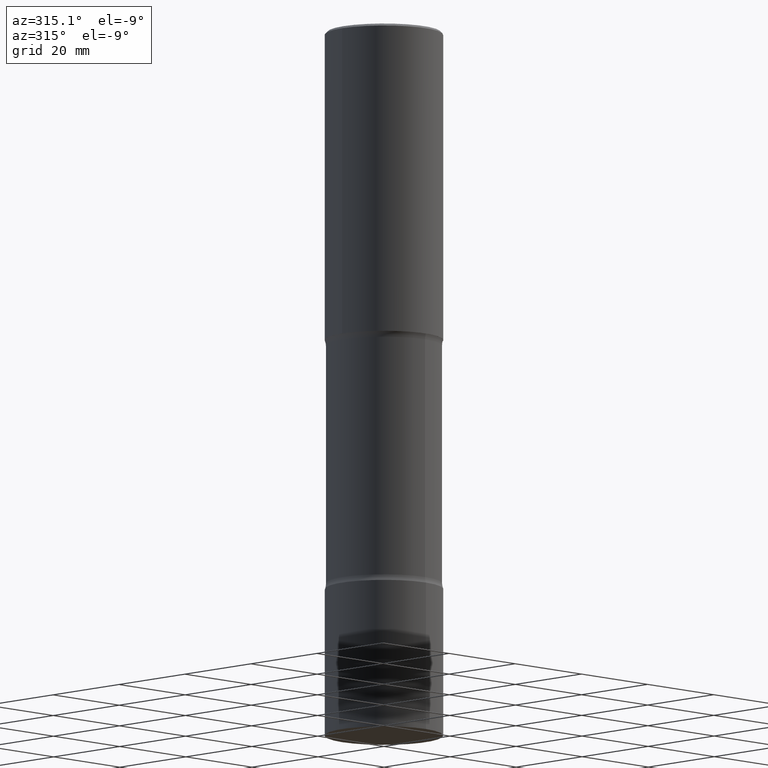
[diagram: clean part render]
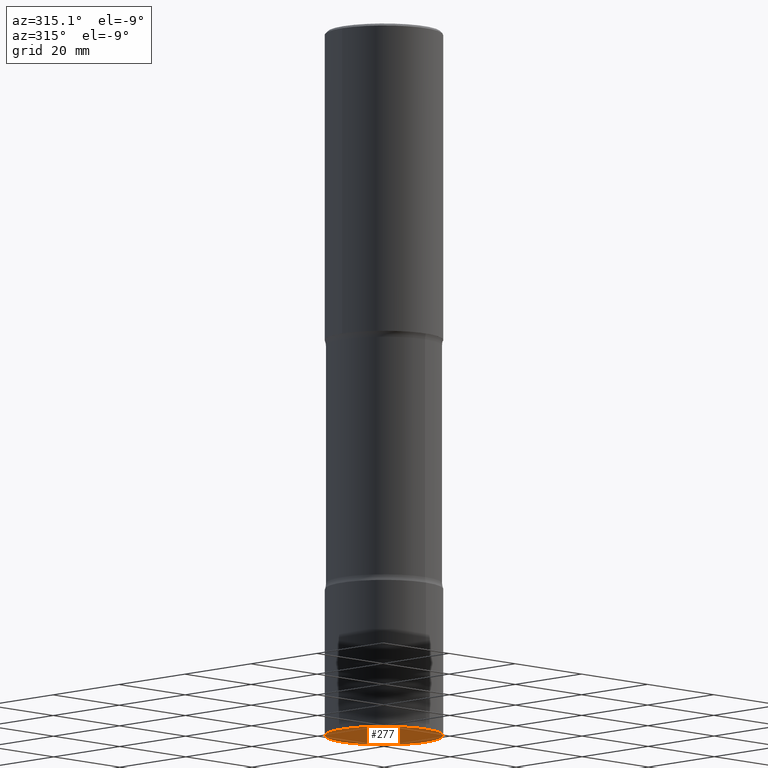
[diagram: same view with one face highlighted and labeled with its STEP entity id]
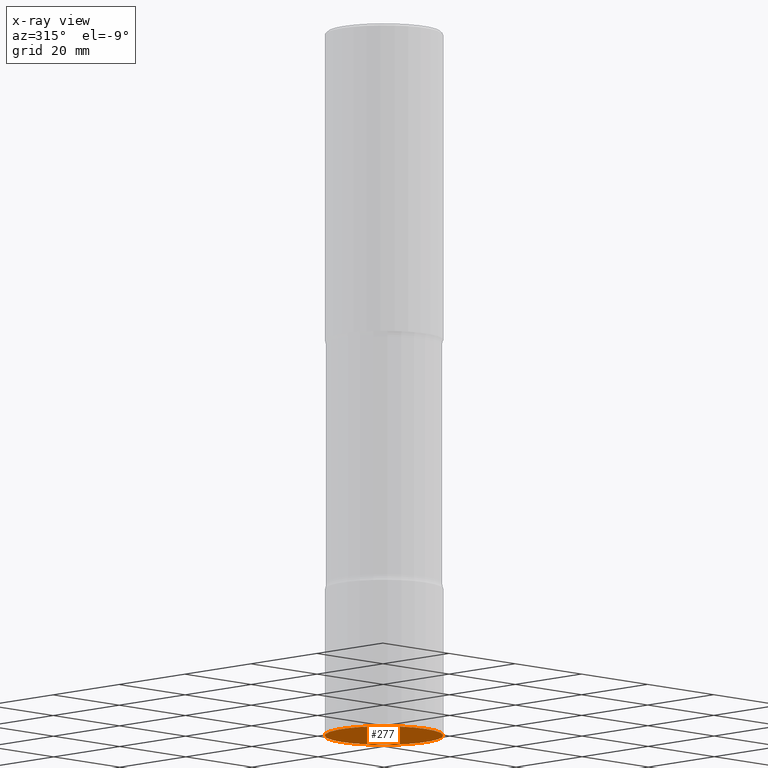
[diagram: x-ray of the same camera — body ghosted, the highlighted face saturated]
A machine part, auxiliary view. The second image highlights one B-rep face of the part: STEP entity #277.
The next image is the same camera in x-ray: the body ghosted, the highlighted face saturated — about 0% of this face is hidden behind the body in this view.
In plain terms, the highlighted planar face has unit normal (0, -0, -1).
Its self-contained STEP definition (entity closure, byte-faithful):
#40 = PLANE ( 'NONE',  #117 ) ;
#56 = VERTEX_POINT ( 'NONE', #508 ) ;
#76 = EDGE_CURVE ( 'NONE', #56, #335, #260, .T. ) ;
#83 = DIRECTION ( 'NONE',  ( 6.982962677686265922E-15, 1.000000000000000000, -3.492714180422504382E-15 ) ) ;
#117 = AXIS2_PLACEMENT_3D ( 'NONE', #125, #357, #83 ) ;
#125 = CARTESIAN_POINT ( 'NONE',  ( 5.516144398293378327E-29, -3.406175840264733616E-14, -5.999999999999999112 ) ) ;
#130 = FACE_OUTER_BOUND ( 'NONE', #305, .T. ) ;
#146 = EDGE_CURVE ( 'NONE', #335, #56, #431, .T. ) ;
#154 = DIRECTION ( 'NONE',  ( -2.444607917511519987E-29, 3.492714180422504776E-15, 1.000000000000000000 ) ) ;
#236 = DIRECTION ( 'NONE',  ( -6.982962677686265922E-15, -1.000000000000000000, 4.370956789862821150E-15 ) ) ;
#260 = CIRCLE ( 'NONE', #347, 0.5000000000000000000 ) ;
#265 = CARTESIAN_POINT ( 'NONE',  ( 3.552713678800631091E-15, 0.4999999999999790168, -6.000000000000002665 ) ) ;
#266 = ORIENTED_EDGE ( 'NONE', *, *, #76, .F. ) ;
#277 = ADVANCED_FACE ( 'NONE', ( #130 ), #40, .T. ) ;
#282 = CARTESIAN_POINT ( 'NONE',  ( 1.466764750506912217E-28, -2.095628508253502945E-14, -6.000000000000000888 ) ) ;
#299 = AXIS2_PLACEMENT_3D ( 'NONE', #282, #429, #236 ) ;
#305 = EDGE_LOOP ( 'NONE', ( #266, #416 ) ) ;
#335 = VERTEX_POINT ( 'NONE', #265 ) ;
#347 = AXIS2_PLACEMENT_3D ( 'NONE', #470, #154, #351 ) ;
#351 = DIRECTION ( 'NONE',  ( -6.982962677686265922E-15, -1.000000000000000000, 4.370956789862821150E-15 ) ) ;
#357 = DIRECTION ( 'NONE',  ( 2.444607917511519987E-29, -3.492714180422504382E-15, -1.000000000000000000 ) ) ;
#416 = ORIENTED_EDGE ( 'NONE', *, *, #146, .F. ) ;
#429 = DIRECTION ( 'NONE',  ( -2.444607917511519987E-29, 3.492714180422504776E-15, 1.000000000000000000 ) ) ;
#431 = CIRCLE ( 'NONE', #299, 0.5000000000000000000 ) ;
#470 = CARTESIAN_POINT ( 'NONE',  ( 1.466764750506912217E-28, -2.095628508253502945E-14, -6.000000000000000888 ) ) ;
#508 = CARTESIAN_POINT ( 'NONE',  ( -3.491481338842986233E-15, -0.5000000000000209832, -5.999999999999998224 ) ) ;